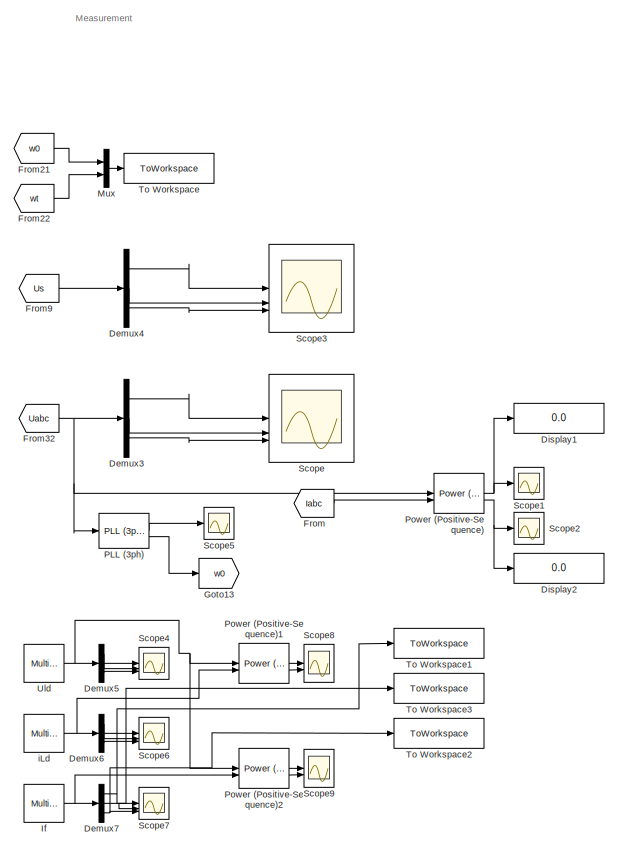
[diagram: root canvas - part 1/4, right side, full height]
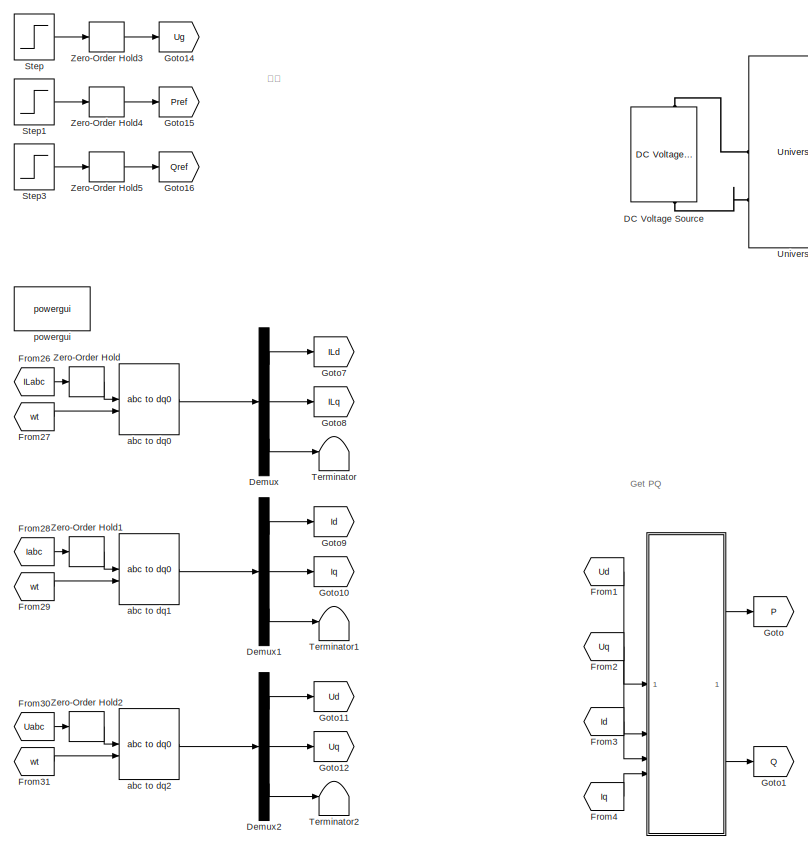
[diagram: root canvas - part 2/4, left side, full height]
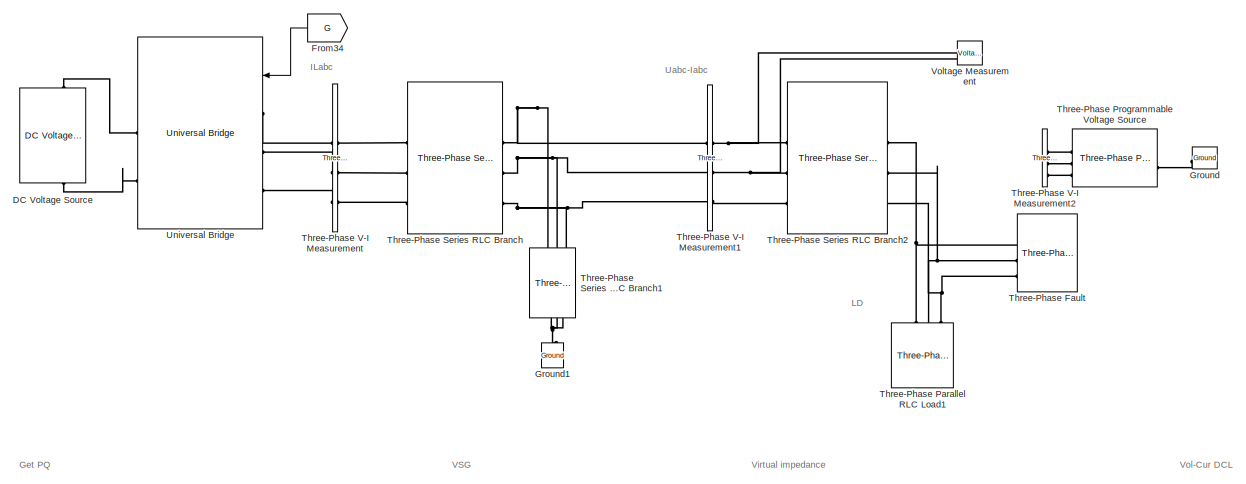
[diagram: root canvas - part 3/4, central region]
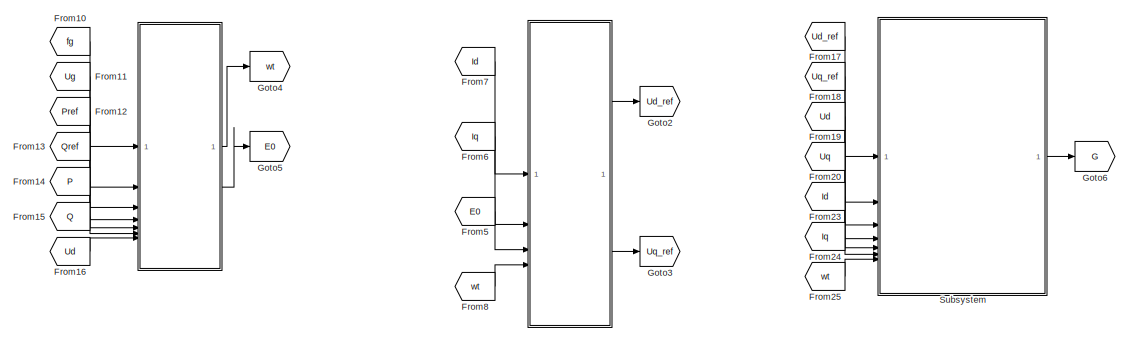
[diagram: root canvas - part 4/4, bottom center region]
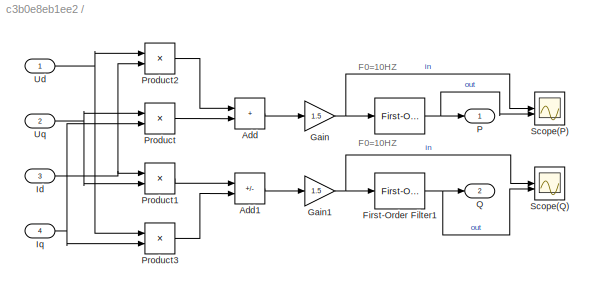
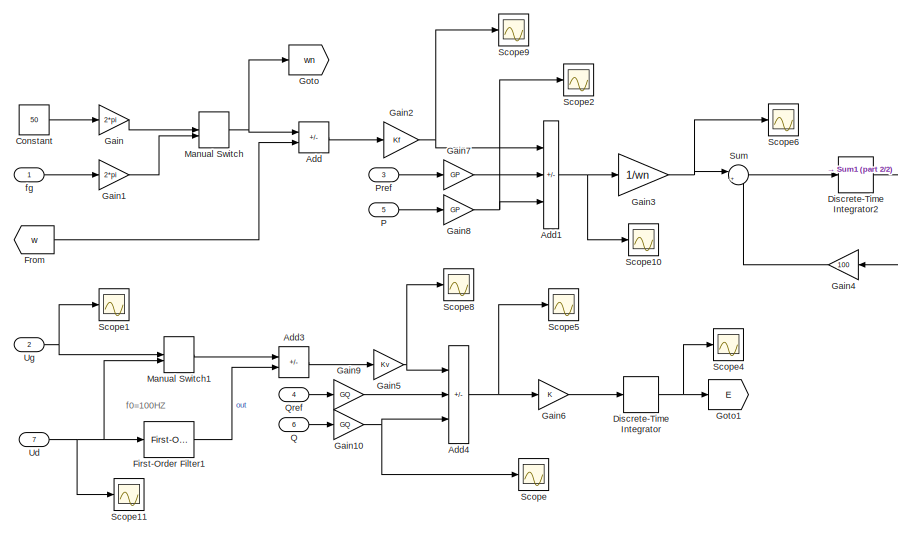
[diagram:    - part 1/2, left side, full height]
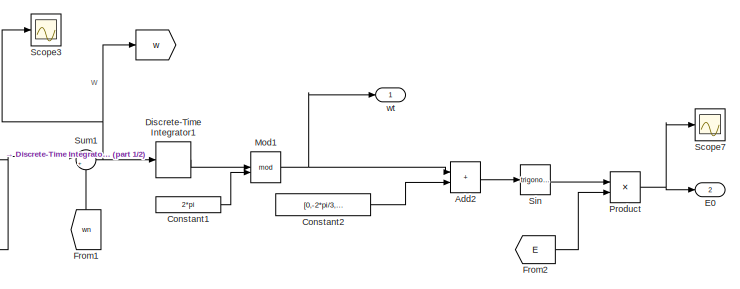
[diagram:    - part 2/2, top right region]
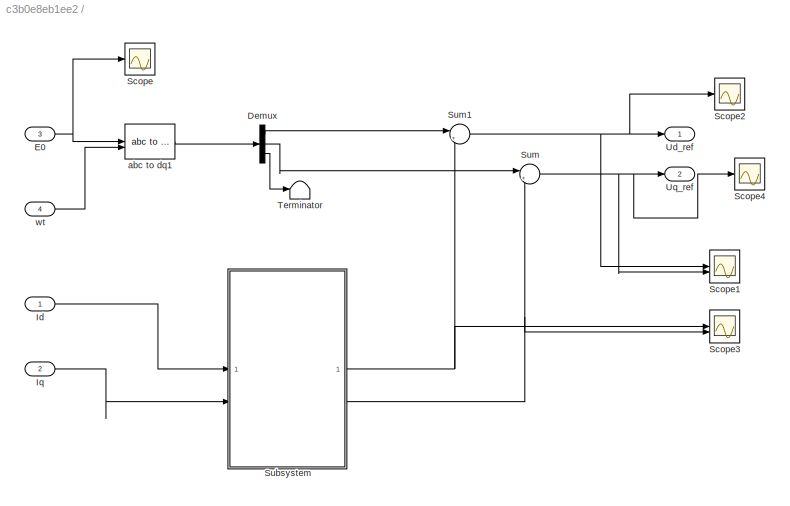
MODEL slx_c3b0e8eb1ee2
KIND model
CONFIG AbsTol = auto
CONFIG EnableMultiTasking = off
CONFIG FixedStep = 1e-6
CONFIG MaxStep = auto
CONFIG MinStep = auto
CONFIG RelTol = 1e-3
CONFIG SampleTimeConstraint = Unconstrained
CONFIG SolverName = FixedStepAuto
CONFIG StartTime = 0.0
CONFIG StopTime = 4
WORKSPACE source: mxarray member
WORKSPACE C = 0.0002
WORKSPACE D = 100
WORKSPACE GP = 1
WORKSPACE GQ = 3
WORKSPACE J = 5
WORKSPACE KQ = 0.06
WORKSPACE Kf = 120
WORKSPACE Kv = 577
WORKSPACE L = 0.002
WORKSPACE Pref = 10000
WORKSPACE Qref = 0
WORKSPACE Ts = 1e-06
WORKSPACE Ug = 563.38264084
WORKSPACE Vdc = 800
WORKSPACE fsw = 20000
WORKSPACE t0 = 0.5
WORKSPACE tco = 1.3
WORKSPACE tf = 1.2
WORKSPACE wn = 314.159265359
BLOCK [SubSystem]  
BLOCK [SubSystem]   
BLOCK [SubSystem]    
BLOCK [Demux]    /Demux
  Outputs = 3
BLOCK [Inport]    /E0
  Description = Cont
  Port = 3
BLOCK [Inport]    /Id
BLOCK [Inport]    /Iq
  Port = 2
BLOCK [Scope]    /Scope
  Floating = off
  NumInputPorts = 1
  ScopeSpecificationString = Simulink.scopes.TimeScopeBlockCfg('CurrentConfiguration', extmgr.ConfigurationSet(extmgr.Configuration('Core','General UI',true),extmgr.Configuration('Core','Source UI',true),extmgr.Configuration('Sources','WiredSimulink',true),extmgr.Configuration('Visuals','Time Domain',true,'SerializedDisplays',{struct('MinYLimReal','-749.46903','MaxYLimReal','749.46397','YLabelReal','','MinYLimMag',' 0.00000',...<+1352ch>
BLOCK [Scope]    /Scope1
  Floating = off
  NumInputPorts = 2
  ScopeSpecificationString = Simulink.scopes.TimeScopeBlockCfg('CurrentConfiguration', extmgr.ConfigurationSet(extmgr.Configuration('Core','General UI',true),extmgr.Configuration('Core','Source UI',true),extmgr.Configuration('Sources','WiredSimulink',true,'DataLoggingVariableName','ScopeData1'),extmgr.Configuration('Visuals','Time Domain',true,'SerializedDisplays',{struct('MinYLimReal','-3363.40131','MaxYLimReal','3214.4683',...<+1389ch>
BLOCK [Scope]    /Scope2
  Floating = off
  NumInputPorts = 1
  ScopeSpecificationString = Simulink.scopes.TimeScopeBlockCfg('CurrentConfiguration', extmgr.ConfigurationSet(extmgr.Configuration('Core','General UI',true),extmgr.Configuration('Core','Source UI',true),extmgr.Configuration('Sources','WiredSimulink',true,'DataLoggingVariableName','ScopeData3'),extmgr.Configuration('Visuals','Time Domain',true,'SerializedDisplays',{struct('MinYLimReal','-102.84085','MaxYLimReal','670.3572','Y...<+1373ch>
BLOCK [Scope]    /Scope3
  Floating = off
  NumInputPorts = 2
  ScopeSpecificationString = Simulink.scopes.TimeScopeBlockCfg('CurrentConfiguration', extmgr.ConfigurationSet(extmgr.Configuration('Core','General UI',true),extmgr.Configuration('Core','Source UI',true),extmgr.Configuration('Sources','WiredSimulink',true,'DataLoggingVariableName','ScopeData3'),extmgr.Configuration('Visuals','Time Domain',true),extmgr.Configuration('Tools','Plot Navigation',true),extmgr.Configuration('Tools',...<+58ch>
BLOCK [Scope]    /Scope4
  Floating = off
  NumInputPorts = 1
  ScopeSpecificationString = Simulink.scopes.TimeScopeBlockCfg('CurrentConfiguration', extmgr.ConfigurationSet(extmgr.Configuration('Core','General UI',true),extmgr.Configuration('Core','Source UI',true),extmgr.Configuration('Sources','WiredSimulink',true,'DataLoggingVariableName','ScopeData4'),extmgr.Configuration('Visuals','Time Domain',true),extmgr.Configuration('Tools','Plot Navigation',true),extmgr.Configuration('Tools',...<+40ch>
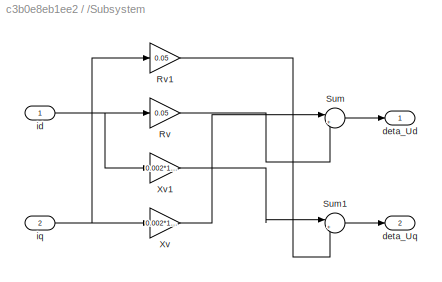
BLOCK [SubSystem]    /Subsystem
BLOCK [Gain]    /Subsystem/Rv
  Gain = 0.05
BLOCK [Gain]    /Subsystem/Rv1
  Gain = 0.05
BLOCK [Sum]    /Subsystem/Sum
  Inputs = |+-
BLOCK [Sum]    /Subsystem/Sum1
  Inputs = |++
BLOCK [Gain]    /Subsystem/Xv
  Gain = 0.002*100*pi
BLOCK [Gain]    /Subsystem/Xv1
  Gain = 0.002*100*pi
BLOCK [Outport]    /Subsystem/deta_Ud
BLOCK [Outport]    /Subsystem/deta_Uq
  Port = 2
BLOCK [Inport]    /Subsystem/id
BLOCK [Inport]    /Subsystem/iq
  Port = 2
BLOCK [Sum]    /Sum
  Inputs = |+-
BLOCK [Sum]    /Sum1
  Inputs = |++
BLOCK [Terminator]    /Terminator
BLOCK [Outport]    /Ud_ref
BLOCK [Outport]    /Uq_ref
  Port = 2
BLOCK [Reference]    /abc to dq1  REF=spsabctodq0Lib/abc to dq0
  LibrarySourceBlock = sps_lib/Control/abc to dq0
  SourceBlock = spsabctodq0Lib/abc to dq0
  SourceType = abc to dq0 Transformation
BLOCK [Inport]    /wt
  Port = 4
BLOCK [Goto]   / 
  GotoTag = w
BLOCK [Sum]   /Add
  IconShape = rectangular
  Inputs = +-
BLOCK [Sum]   /Add1
  IconShape = rectangular
  Inputs = ++-
BLOCK [Sum]   /Add2
  IconShape = rectangular
BLOCK [Sum]   /Add3
  IconShape = rectangular
  Inputs = +-
BLOCK [Sum]   /Add4
  IconShape = rectangular
  Inputs = ++-
BLOCK [Constant]   /Constant
  Value = 50
BLOCK [Constant]   /Constant1
  Value = 2*pi
BLOCK [Constant]   /Constant2
  Value = [0,-2*pi/3,2*pi/3]
BLOCK [DiscreteIntegrator]   /Discrete-Time Integrator
  ICPrevOutput = DiscIntNeverNeededParam
  ICPrevScaledInput = DiscIntNeverNeededParam
  InitialConditionSetting = Auto
  SampleTime = 1/fsw
  gainval = KQ
BLOCK [DiscreteIntegrator]   /Discrete-Time Integrator1
  ICPrevOutput = DiscIntNeverNeededParam
  ICPrevScaledInput = DiscIntNeverNeededParam
  InitialConditionSetting = Auto
  SampleTime = 1/fsw
BLOCK [DiscreteIntegrator]   /Discrete-Time Integrator2
  ICPrevOutput = DiscIntNeverNeededParam
  ICPrevScaledInput = DiscIntNeverNeededParam
  InitialConditionSetting = Auto
  SampleTime = 1/fsw
  gainval = 1/J
BLOCK [Outport]   /E0
  Port = 2
BLOCK [Reference]   /First-Order Filter1  REF=spsFirstOrderFilterLib/First-Order
Filter
  LibrarySourceBlock = sps_lib/Control/Filters/First-Order\nFilter
  SourceBlock = spsFirstOrderFilterLib/First-Order\nFilter
  SourceType = First-Order Filter
BLOCK [From]   /From
  GotoTag = w
BLOCK [From]   /From1
  GotoTag = wn
  NameLocation = right
BLOCK [From]   /From2
  GotoTag = E
BLOCK [Gain]   /Gain
  Gain = 2*pi
BLOCK [Gain]   /Gain1
  Gain = 2*pi
BLOCK [Gain]   /Gain10
  Gain = GQ
BLOCK [Gain]   /Gain2
  Gain = Kf
BLOCK [Gain]   /Gain3
  Gain = 1/wn
BLOCK [Gain]   /Gain4
  Gain = 100
BLOCK [Gain]   /Gain5
  Gain = Kv
BLOCK [Gain]   /Gain6
BLOCK [Gain]   /Gain7
  Gain = GP
BLOCK [Gain]   /Gain8
  Gain = GP
BLOCK [Gain]   /Gain9
  Gain = GQ
BLOCK [Goto]   /Goto
  GotoTag = wn
BLOCK [Goto]   /Goto1
  GotoTag = E
BLOCK [ManualSwitch]   /Manual Switch
BLOCK [ManualSwitch]   /Manual Switch1
BLOCK [Math]   /Mod1
  Operator = mod
BLOCK [Inport]   /P
  Port = 5
BLOCK [Inport]   /Pref
  Port = 3
BLOCK [Product]   /Product
BLOCK [Inport]   /Q
  Port = 6
BLOCK [Inport]   /Qref
  Port = 4
BLOCK [Scope]   /Scope
  Floating = off
  NumInputPorts = 1
  ScopeSpecificationString = Simulink.scopes.TimeScopeBlockCfg('CurrentConfiguration', extmgr.ConfigurationSet(extmgr.Configuration('Core','General UI',true),extmgr.Configuration('Core','Source UI',true),extmgr.Configuration('Sources','WiredSimulink',true),extmgr.Configuration('Visuals','Time Domain',true,'SerializedDisplays',{struct('MinYLimReal','-50.5071','MaxYLimReal','2233.1673','YLabelReal','','MinYLimMag','0.00000','Ma...<+1417ch>
BLOCK [Scope]   /Scope1
  Floating = off
  NumInputPorts = 1
  ScopeSpecificationString = Simulink.scopes.TimeScopeBlockCfg('CurrentConfiguration', extmgr.ConfigurationSet(extmgr.Configuration('Core','General UI',true),extmgr.Configuration('Core','Source UI',true),extmgr.Configuration('Sources','WiredSimulink',true,'DataLoggingVariableName','ScopeData2'),extmgr.Configuration('Visuals','Time Domain',true,'SerializedDisplays',{struct('MinYLimReal','-25.00000','MaxYLimReal','225.00000','Y...<+1481ch>
BLOCK [Scope]   /Scope10
  Floating = off
  NumInputPorts = 1
  ScopeSpecificationString = Simulink.scopes.TimeScopeBlockCfg('CurrentConfiguration', extmgr.ConfigurationSet(extmgr.Configuration('Core','General UI',true),extmgr.Configuration('Core','Source UI',true),extmgr.Configuration('Sources','WiredSimulink',true,'DataLoggingVariableName','ScopeData8'),extmgr.Configuration('Visuals','Time Domain',true,'SerializedDisplays',{struct('MinYLimReal','-46410.89145','MaxYLimReal','63521.2692...<+1428ch>
BLOCK [Scope]   /Scope11
  Floating = off
  NumInputPorts = 1
  ScopeSpecificationString = Simulink.scopes.TimeScopeBlockCfg('CurrentConfiguration', extmgr.ConfigurationSet(extmgr.Configuration('Core','General UI',true),extmgr.Configuration('Core','Source UI',true),extmgr.Configuration('Sources','WiredSimulink',true,'DataLoggingVariableName','ScopeData1'),extmgr.Configuration('Visuals','Time Domain',true,'SerializedDisplays',{struct('MinYLimReal','-276.57965','MaxYLimReal','756.49485','...<+1485ch>
BLOCK [Scope]   /Scope2
  Floating = off
  NumInputPorts = 1
  ScopeSpecificationString = Simulink.scopes.TimeScopeBlockCfg('CurrentConfiguration', extmgr.ConfigurationSet(extmgr.Configuration('Core','General UI',true),extmgr.Configuration('Core','Source UI',true),extmgr.Configuration('Sources','WiredSimulink',true,'DataLoggingVariableName','ScopeData2'),extmgr.Configuration('Visuals','Time Domain',true,'SerializedDisplays',{struct('MinYLimReal','-152.71549','MaxYLimReal','1374.43939',...<+1401ch>
BLOCK [Scope]   /Scope3
  Floating = off
  NumInputPorts = 1
  ScopeSpecificationString = Simulink.scopes.TimeScopeBlockCfg('CurrentConfiguration', extmgr.ConfigurationSet(extmgr.Configuration('Core','General UI',true),extmgr.Configuration('Core','Source UI',true),extmgr.Configuration('Sources','WiredSimulink',true,'DataLoggingVariableName','ScopeData3'),extmgr.Configuration('Visuals','Time Domain',true,'SerializedDisplays',{struct('MinYLimReal','313.34636','MaxYLimReal','315.19193','Y...<+1425ch>
BLOCK [Scope]   /Scope4
  Floating = off
  NumInputPorts = 1
  ScopeSpecificationString = Simulink.scopes.TimeScopeBlockCfg('CurrentConfiguration', extmgr.ConfigurationSet(extmgr.Configuration('Core','General UI',true),extmgr.Configuration('Core','Source UI',true),extmgr.Configuration('Sources','WiredSimulink',true,'DataLoggingVariableName','ScopeData4'),extmgr.Configuration('Visuals','Time Domain',true,'SerializedDisplays',{struct('MinYLimReal','-74.96486','MaxYLimReal','674.68371','Y...<+1393ch>
BLOCK [Scope]   /Scope5
  Floating = off
  NumInputPorts = 1
  ScopeSpecificationString = Simulink.scopes.TimeScopeBlockCfg('CurrentConfiguration', extmgr.ConfigurationSet(extmgr.Configuration('Core','General UI',true),extmgr.Configuration('Core','Source UI',true),extmgr.Configuration('Sources','WiredSimulink',true,'DataLoggingVariableName','ScopeData3'),extmgr.Configuration('Visuals','Time Domain',true,'SerializedDisplays',{struct('MinYLimReal','-179528.42495','MaxYLimReal','436423.60...<+1401ch>
BLOCK [Scope]   /Scope6
  Floating = off
  NumInputPorts = 1
  ScopeSpecificationString = Simulink.scopes.TimeScopeBlockCfg('CurrentConfiguration', extmgr.ConfigurationSet(extmgr.Configuration('Core','General UI',true),extmgr.Configuration('Core','Source UI',true),extmgr.Configuration('Sources','WiredSimulink',true,'DataLoggingVariableName','ScopeData4'),extmgr.Configuration('Visuals','Time Domain',true,'SerializedDisplays',{struct('MinYLimReal','-147.73046','MaxYLimReal','202.19448','...<+1378ch>
BLOCK [Scope]   /Scope7
  Floating = off
  NumInputPorts = 1
  ScopeSpecificationString = Simulink.scopes.TimeScopeBlockCfg('CurrentConfiguration', extmgr.ConfigurationSet(extmgr.Configuration('Core','General UI',true),extmgr.Configuration('Core','Source UI',true),extmgr.Configuration('Sources','WiredSimulink',true,'DataLoggingVariableName','ScopeData5'),extmgr.Configuration('Visuals','Time Domain',true,'SerializedDisplays',{struct('MinYLimReal','-301.28454','MaxYLimReal','301.37192','...<+1477ch>
BLOCK [Scope]   /Scope8
  Floating = off
  NumInputPorts = 1
  ScopeSpecificationString = Simulink.scopes.TimeScopeBlockCfg('CurrentConfiguration', extmgr.ConfigurationSet(extmgr.Configuration('Core','General UI',true),extmgr.Configuration('Core','Source UI',true),extmgr.Configuration('Sources','WiredSimulink',true,'DataLoggingVariableName','ScopeData6'),extmgr.Configuration('Visuals','Time Domain',true,'SerializedDisplays',{struct('MinYLimReal','179.61868','MaxYLimReal','2032.54349','...<+1430ch>
BLOCK [Scope]   /Scope9
  Floating = off
  NumInputPorts = 1
  ScopeSpecificationString = Simulink.scopes.TimeScopeBlockCfg('CurrentConfiguration', extmgr.ConfigurationSet(extmgr.Configuration('Core','General UI',true),extmgr.Configuration('Core','Source UI',true),extmgr.Configuration('Sources','WiredSimulink',true,'DataLoggingVariableName','ScopeData7'),extmgr.Configuration('Visuals','Time Domain',true,'SerializedDisplays',{struct('MinYLimReal','-1468.49135','MaxYLimReal','13216.42211...<+1409ch>
BLOCK [Trigonometry]   /Sin
BLOCK [Sum]   /Sum
  Inputs = |+-
BLOCK [Sum]   /Sum1
  Inputs = |++
BLOCK [Inport]   /Ud
  Port = 7
BLOCK [Inport]   /Ug
  Port = 2
BLOCK [Inport]   /fg
BLOCK [Outport]   /wt
BLOCK [Reference]  /   REF=spsFirstOrderFilterLib/First-Order
Filter
  LibrarySourceBlock = sps_lib/Control/Filters/First-Order\nFilter
  SourceBlock = spsFirstOrderFilterLib/First-Order\nFilter
  SourceType = First-Order Filter
BLOCK [Sum]  /Add
  IconShape = rectangular
BLOCK [Sum]  /Add1
  IconShape = rectangular
  Inputs = +-
BLOCK [Reference]  /First-Order Filter1  REF=spsFirstOrderFilterLib/First-Order
Filter
  LibrarySourceBlock = sps_lib/Control/Filters/First-Order\nFilter
  SourceBlock = spsFirstOrderFilterLib/First-Order\nFilter
  SourceType = First-Order Filter
BLOCK [Gain]  /Gain
  Gain = 1.5
BLOCK [Gain]  /Gain1
  Gain = 1.5
BLOCK [Inport]  /Id
  Port = 3
BLOCK [Inport]  /Iq
  Port = 4
BLOCK [Outport]  /P
BLOCK [Product]  /Product
BLOCK [Product]  /Product1
BLOCK [Product]  /Product2
BLOCK [Product]  /Product3
BLOCK [Outport]  /Q
  Port = 2
BLOCK [Scope]  /Scope(P)
  Floating = off
  NumInputPorts = 2
  ScopeSpecificationString = Simulink.scopes.TimeScopeBlockCfg('CurrentConfiguration', extmgr.ConfigurationSet(extmgr.Configuration('Core','General UI',true),extmgr.Configuration('Core','Source UI',true),extmgr.Configuration('Sources','WiredSimulink',true,'DataLoggingVariableName','ScopeData1'),extmgr.Configuration('Visuals','Time Domain',true),extmgr.Configuration('Tools','Plot Navigation',true),extmgr.Configuration('Tools',...<+58ch>
BLOCK [Scope]  /Scope(Q)
  Floating = off
  NumInputPorts = 2
  ScopeSpecificationString = Simulink.scopes.TimeScopeBlockCfg('CurrentConfiguration', extmgr.ConfigurationSet(extmgr.Configuration('Core','General UI',true),extmgr.Configuration('Core','Source UI',true),extmgr.Configuration('Sources','WiredSimulink',true),extmgr.Configuration('Visuals','Time Domain',true,'SerializedDisplays',{struct('MinYLimReal','-67310.48556','MaxYLimReal','51991.39138','YLabelReal','','MinYLimMag','   0.0...<+1391ch>
BLOCK [Inport]  /Ud
BLOCK [Inport]  /Uq
  Port = 2
BLOCK [Reference] DC Voltage Source  REF=spsDCVoltageSourceLib/DC Voltage Source
  LibrarySourceBlock = sps_lib/Sources/DC Voltage Source
  SourceBlock = spsDCVoltageSourceLib/DC Voltage Source
  SourceType = DC Voltage Source
BLOCK [Demux] Demux
  Outputs = 3
BLOCK [Demux] Demux1
  Outputs = 3
BLOCK [Demux] Demux2
  Outputs = 3
BLOCK [Demux] Demux3
  Outputs = 3
BLOCK [Demux] Demux4
  Outputs = 3
BLOCK [Demux] Demux5
  Outputs = 3
BLOCK [Demux] Demux6
  Outputs = 3
BLOCK [Demux] Demux7
  Outputs = 3
BLOCK [Display] Display1
  Decimation = 1
BLOCK [Display] Display2
  Decimation = 1
BLOCK [From] From
  GotoTag = Iabc
  TagVisibility = global
BLOCK [From] From1
  GotoTag = Ud
BLOCK [From] From10
  GotoTag = fg
BLOCK [From] From11
  GotoTag = Ug
BLOCK [From] From12
  GotoTag = Pref
BLOCK [From] From13
  GotoTag = Qref
BLOCK [From] From14
  GotoTag = P
BLOCK [From] From15
  GotoTag = Q
BLOCK [From] From16
  GotoTag = Ud
BLOCK [From] From17
  GotoTag = Ud_ref
BLOCK [From] From18
  GotoTag = Uq_ref
BLOCK [From] From19
  GotoTag = Ud
BLOCK [From] From2
  GotoTag = Uq
BLOCK [From] From20
  GotoTag = Uq
BLOCK [From] From21
  GotoTag = w0
BLOCK [From] From22
  GotoTag = wt
BLOCK [From] From23
  GotoTag = Id
BLOCK [From] From24
  GotoTag = Iq
BLOCK [From] From25
  GotoTag = wt
BLOCK [From] From26
  GotoTag = ILabc
  TagVisibility = global
BLOCK [From] From27
  GotoTag = wt
BLOCK [From] From28
  GotoTag = Iabc
  TagVisibility = global
BLOCK [From] From29
  GotoTag = wt
BLOCK [From] From3
  GotoTag = Id
BLOCK [From] From30
  GotoTag = Uabc
  TagVisibility = global
BLOCK [From] From31
  GotoTag = wt
BLOCK [From] From32
  GotoTag = Uabc
  TagVisibility = global
BLOCK [From] From34
  GotoTag = G
  NameLocation = top
BLOCK [From] From4
  GotoTag = Iq
BLOCK [From] From5
  GotoTag = E0
BLOCK [From] From6
  GotoTag = Iq
BLOCK [From] From7
  GotoTag = Id
BLOCK [From] From8
  GotoTag = wt
BLOCK [From] From9
  GotoTag = Us
  TagVisibility = global
BLOCK [Goto] Goto
  GotoTag = P
BLOCK [Goto] Goto1
  GotoTag = Q
BLOCK [Goto] Goto10
  GotoTag = Iq
BLOCK [Goto] Goto11
  GotoTag = Ud
BLOCK [Goto] Goto12
  GotoTag = Uq
BLOCK [Goto] Goto13
  GotoTag = w0
BLOCK [Goto] Goto14
  GotoTag = Ug
BLOCK [Goto] Goto15
  GotoTag = Pref
BLOCK [Goto] Goto16
  GotoTag = Qref
BLOCK [Goto] Goto2
  GotoTag = Ud_ref
BLOCK [Goto] Goto3
  GotoTag = Uq_ref
BLOCK [Goto] Goto4
  GotoTag = wt
BLOCK [Goto] Goto5
  GotoTag = E0
BLOCK [Goto] Goto6
  GotoTag = G
BLOCK [Goto] Goto7
  GotoTag = ILd
BLOCK [Goto] Goto8
  GotoTag = ILq
BLOCK [Goto] Goto9
  GotoTag = Id
BLOCK [Reference] Ground  REF=spsGroundLib/Ground
  LibrarySourceBlock = sps_lib/Utilities/Ground
  NameLocation = top
  SourceBlock = spsGroundLib/Ground
  SourceType = Ground
BLOCK [Reference] Ground1  REF=spsGroundLib/Ground
  LibrarySourceBlock = sps_lib/Utilities/Ground
  NameLocation = right
  SourceBlock = spsGroundLib/Ground
  SourceType = Ground
BLOCK [Reference] If  REF=spsMultimeterLib/Multimeter
  LibrarySourceBlock = sps_lib/Sensors and Measurements/Multimeter
  SourceBlock = spsMultimeterLib/Multimeter
  SourceType = Multimeter
BLOCK [Mux] Mux
  DisplayOption = bar
  Inputs = 2
BLOCK [Reference] PLL (3ph)  REF=spsPLL3phLib/PLL
(3ph)
  LibrarySourceBlock = sps_lib/Control/PLL\n(3ph)
  SourceBlock = spsPLL3phLib/PLL\n(3ph)
  SourceType = PLL (3ph)
BLOCK [Reference] Power (Positive-Sequence)  REF=spsPowerPositiveSequenceLib/Power
(Positive-Sequence)
  LibrarySourceBlock = sps_lib/Sensors and Measurements/Power\n(Positive-Sequence)
  SourceBlock = spsPowerPositiveSequenceLib/Power\n(Positive-Sequence)
  SourceType = Power (Positive-Sequence)
BLOCK [Reference] Power (Positive-Sequence)1  REF=spsPowerPositiveSequenceLib/Power
(Positive-Sequence)
  LibrarySourceBlock = sps_lib/Sensors and Measurements/Power\n(Positive-Sequence)
  SourceBlock = spsPowerPositiveSequenceLib/Power\n(Positive-Sequence)
  SourceType = Power (Positive-Sequence)
BLOCK [Reference] Power (Positive-Sequence)2  REF=spsPowerPositiveSequenceLib/Power
(Positive-Sequence)
  LibrarySourceBlock = sps_lib/Sensors and Measurements/Power\n(Positive-Sequence)
  SourceBlock = spsPowerPositiveSequenceLib/Power\n(Positive-Sequence)
  SourceType = Power (Positive-Sequence)
BLOCK [Scope] Scope
  Floating = off
  NumInputPorts = 3
  ScopeSpecificationString = Simulink.scopes.TimeScopeBlockCfg('CurrentConfiguration', extmgr.ConfigurationSet(extmgr.Configuration('Core','General UI',true),extmgr.Configuration('Core','Source UI',true),extmgr.Configuration('Sources','WiredSimulink',true,'DataLoggingVariableName','dd','DataLogging',true,'DataLoggingSaveFormat','StructureWithTime'),extmgr.Configuration('Visuals','Time Domain',true,'SerializedDisplays',{struct...<+1533ch>
BLOCK [Scope] Scope1
  Floating = off
  NumInputPorts = 1
  ScopeSpecificationString = Simulink.scopes.TimeScopeBlockCfg('CurrentConfiguration', extmgr.ConfigurationSet(extmgr.Configuration('Core','General UI',true),extmgr.Configuration('Core','Source UI',true),extmgr.Configuration('Sources','WiredSimulink',true,'DataLoggingVariableName','ScopeData1'),extmgr.Configuration('Visuals','Time Domain',true,'SerializedDisplays',{struct('MinYLimReal','-8256.72976','MaxYLimReal','74310.56782...<+1441ch>
BLOCK [Scope] Scope2
  Floating = off
  NumInputPorts = 1
  ScopeSpecificationString = Simulink.scopes.TimeScopeBlockCfg('CurrentConfiguration', extmgr.ConfigurationSet(extmgr.Configuration('Core','General UI',true),extmgr.Configuration('Core','Source UI',true),extmgr.Configuration('Sources','WiredSimulink',true,'DataLoggingVariableName','ScopeData2'),extmgr.Configuration('Visuals','Time Domain',true,'SerializedDisplays',{struct('MinYLimReal','-61964.12254','MaxYLimReal','9096.99453...<+1489ch>
BLOCK [Scope] Scope3
  Floating = off
  NumInputPorts = 3
  ScopeSpecificationString = Simulink.scopes.TimeScopeBlockCfg('CurrentConfiguration', extmgr.ConfigurationSet(extmgr.Configuration('Core','General UI',true),extmgr.Configuration('Core','Source UI',true),extmgr.Configuration('Sources','WiredSimulink',true,'DataLoggingVariableName','ScopeData5'),extmgr.Configuration('Visuals','Time Domain',true,'SerializedDisplays',{struct('MinYLimReal','-704.2283','MaxYLimReal','704.2283','YL...<+1496ch>
BLOCK [Scope] Scope4
  Floating = off
  NumInputPorts = 3
  ScopeSpecificationString = Simulink.scopes.TimeScopeBlockCfg('CurrentConfiguration', extmgr.ConfigurationSet(extmgr.Configuration('Core','General UI',true),extmgr.Configuration('Core','Source UI',true),extmgr.Configuration('Sources','WiredSimulink',true,'DataLoggingVariableName','ScopeData2'),extmgr.Configuration('Visuals','Time Domain',true,'SerializedDisplays',{struct('MinYLimReal','-1503.05288','MaxYLimReal','1056.56765'...<+2674ch>
BLOCK [Scope] Scope5
  Floating = off
  NumInputPorts = 1
  ScopeSpecificationString = Simulink.scopes.TimeScopeBlockCfg('CurrentConfiguration', extmgr.ConfigurationSet(extmgr.Configuration('Core','General UI',true),extmgr.Configuration('Core','Source UI',true),extmgr.Configuration('Sources','WiredSimulink',true,'DataLoggingVariableName','ScopeData1'),extmgr.Configuration('Visuals','Time Domain',true,'SerializedDisplays',{struct('MinYLimReal','49.88361','MaxYLimReal','50.11052','YLa...<+1448ch>
BLOCK [Scope] Scope6
  Floating = off
  NumInputPorts = 3
  ScopeSpecificationString = Simulink.scopes.TimeScopeBlockCfg('CurrentConfiguration', extmgr.ConfigurationSet(extmgr.Configuration('Core','General UI',true),extmgr.Configuration('Core','Source UI',true),extmgr.Configuration('Sources','WiredSimulink',true,'DataLoggingVariableName','ScopeData3'),extmgr.Configuration('Visuals','Time Domain',true,'SerializedDisplays',{struct('MinYLimReal','-31.57011','MaxYLimReal','22.19214','YL...<+2658ch>
BLOCK [Scope] Scope7
  Floating = off
  NumInputPorts = 3
  ScopeSpecificationString = Simulink.scopes.TimeScopeBlockCfg('CurrentConfiguration', extmgr.ConfigurationSet(extmgr.Configuration('Core','General UI',true),extmgr.Configuration('Core','Source UI',true),extmgr.Configuration('Sources','WiredSimulink',true,'DataLoggingVariableName','ScopeData4'),extmgr.Configuration('Visuals','Time Domain',true,'SerializedDisplays',{struct('MinYLimReal','-308.26495','MaxYLimReal','311.73334','...<+2658ch>
BLOCK [Scope] Scope8
  Floating = off
  NumInputPorts = 2
  ScopeSpecificationString = Simulink.scopes.TimeScopeBlockCfg('CurrentConfiguration', extmgr.ConfigurationSet(extmgr.Configuration('Core','General UI',true),extmgr.Configuration('Core','Source UI',true),extmgr.Configuration('Sources','WiredSimulink',true,'DataLoggingVariableName','ScopeData5'),extmgr.Configuration('Visuals','Time Domain',true,'SerializedDisplays',{struct('MinYLimReal','-1260.30692','MaxYLimReal','11342.76226...<+2071ch>
BLOCK [Scope] Scope9
  Floating = off
  NumInputPorts = 2
  ScopeSpecificationString = Simulink.scopes.TimeScopeBlockCfg('CurrentConfiguration', extmgr.ConfigurationSet(extmgr.Configuration('Core','General UI',true),extmgr.Configuration('Core','Source UI',true),extmgr.Configuration('Sources','WiredSimulink',true,'DataLoggingVariableName','ScopeData6'),extmgr.Configuration('Visuals','Time Domain',true,'SerializedDisplays',{struct('MinYLimReal','-10','MaxYLimReal','10','YLabelReal',''...<+2092ch>
BLOCK [Step] Step
  After = Ug
  Before = 1
  SampleTime = 0
  Time = 0.5
BLOCK [Step] Step1
  After = Pref
  SampleTime = 0
  Time = t0
BLOCK [Step] Step3
  After = Qref
  SampleTime = 0
  Time = t0
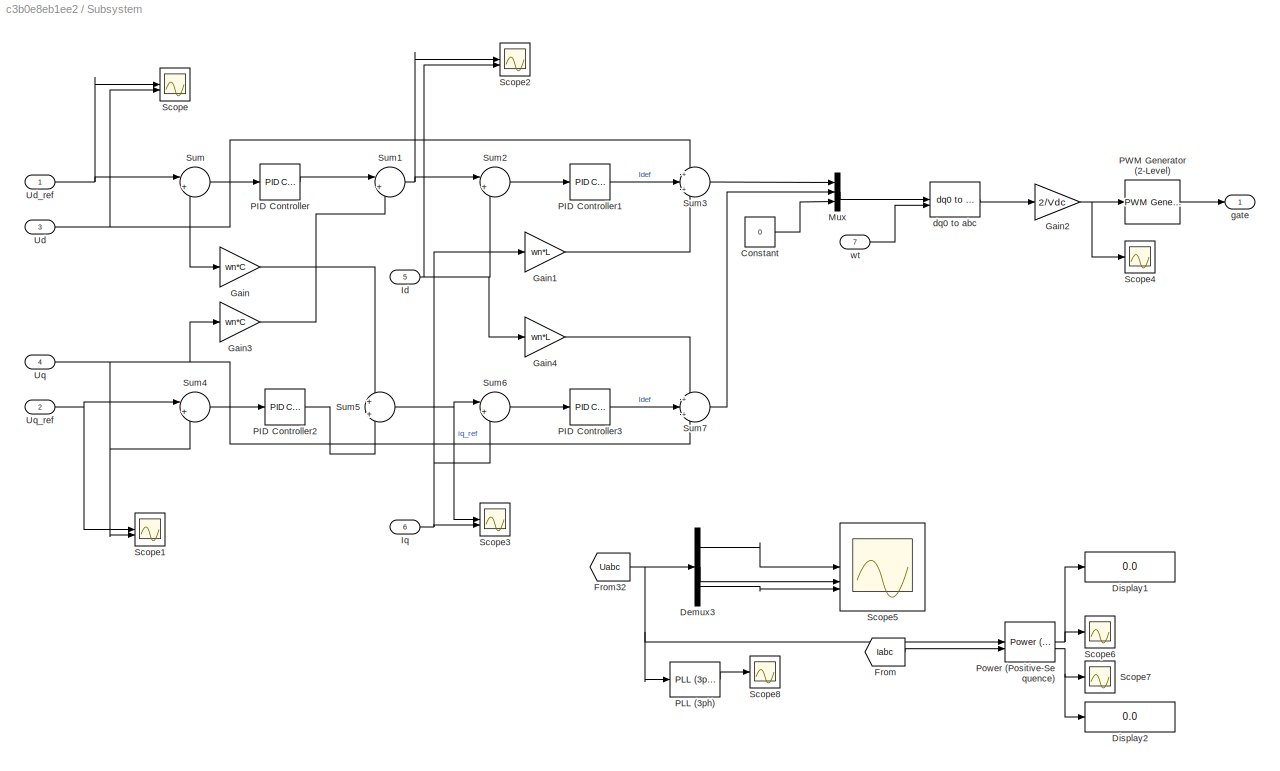
BLOCK [SubSystem] Subsystem
BLOCK [Constant] Subsystem/Constant
  Value = 0
BLOCK [Demux] Subsystem/Demux3
  Outputs = 3
BLOCK [Display] Subsystem/Display1
  Decimation = 1
BLOCK [Display] Subsystem/Display2
  Decimation = 1
BLOCK [From] Subsystem/From
  GotoTag = Iabc
  TagVisibility = global
BLOCK [From] Subsystem/From32
  GotoTag = Uabc
  TagVisibility = global
BLOCK [Gain] Subsystem/Gain
  Gain = wn*C
BLOCK [Gain] Subsystem/Gain1
  Gain = wn*L
BLOCK [Gain] Subsystem/Gain2
  Gain = 2/Vdc
BLOCK [Gain] Subsystem/Gain3
  Gain = wn*C
  NameLocation = top
BLOCK [Gain] Subsystem/Gain4
  Gain = wn*L
  NameLocation = top
BLOCK [Inport] Subsystem/Id
  Port = 5
BLOCK [Inport] Subsystem/Iq
  Port = 6
BLOCK [Mux] Subsystem/Mux
  DisplayOption = bar
  Inputs = 3
BLOCK [Reference] Subsystem/PID Controller  REF=slpidlib/PID Controller
  LibrarySourceBlock = simulink/Continuous/PID Controller
  SourceBlock = slpidlib/PID Controller
  SourceType = PID 1dof
BLOCK [Reference] Subsystem/PID Controller1  REF=slpidlib/PID Controller
  LibrarySourceBlock = simulink/Continuous/PID Controller
  SourceBlock = slpidlib/PID Controller
  SourceType = PID 1dof
BLOCK [Reference] Subsystem/PID Controller2  REF=slpidlib/PID Controller
  LibrarySourceBlock = simulink/Continuous/PID Controller
  NameLocation = top
  SourceBlock = slpidlib/PID Controller
  SourceType = PID 1dof
BLOCK [Reference] Subsystem/PID Controller3  REF=slpidlib/PID Controller
  LibrarySourceBlock = simulink/Continuous/PID Controller
  NameLocation = top
  SourceBlock = slpidlib/PID Controller
  SourceType = PID 1dof
BLOCK [Reference] Subsystem/PLL (3ph)  REF=spsPLL3phLib/PLL
(3ph)
  LibrarySourceBlock = sps_lib/Control/PLL\n(3ph)
  SourceBlock = spsPLL3phLib/PLL\n(3ph)
  SourceType = PLL (3ph)
BLOCK [Reference] Subsystem/PWM Generator (2-Level)  REF=spsPWMGenerator2LevelLib/PWM Generator
(2-Level)
  LibrarySourceBlock = sps_lib/Power Electronics/Power Electronics Control/PWM Generator\n(2-Level)
  SourceBlock = spsPWMGenerator2LevelLib/PWM Generator\n(2-Level)
  SourceType = PWM Generator (2-Level)
BLOCK [Reference] Subsystem/Power (Positive-Sequence)  REF=spsPowerPositiveSequenceLib/Power
(Positive-Sequence)
  LibrarySourceBlock = sps_lib/Sensors and Measurements/Power\n(Positive-Sequence)
  SourceBlock = spsPowerPositiveSequenceLib/Power\n(Positive-Sequence)
  SourceType = Power (Positive-Sequence)
BLOCK [Scope] Subsystem/Scope
  Floating = off
  NumInputPorts = 2
  ScopeSpecificationString = Simulink.scopes.TimeScopeBlockCfg('CurrentConfiguration', extmgr.ConfigurationSet(extmgr.Configuration('Core','General UI',true),extmgr.Configuration('Core','Source UI',true),extmgr.Configuration('Sources','WiredSimulink',true),extmgr.Configuration('Visuals','Time Domain',true,'SerializedDisplays',{struct('MinYLimReal','-72.43624','MaxYLimReal','643.4769','YLabelReal','','MinYLimMag','0.00000','Ma...<+1436ch>
BLOCK [Scope] Subsystem/Scope1
  Floating = off
  NumInputPorts = 2
  ScopeSpecificationString = Simulink.scopes.TimeScopeBlockCfg('CurrentConfiguration', extmgr.ConfigurationSet(extmgr.Configuration('Core','General UI',true),extmgr.Configuration('Core','Source UI',true),extmgr.Configuration('Sources','WiredSimulink',true,'DataLoggingVariableName','ScopeData1'),extmgr.Configuration('Visuals','Time Domain',true,'SerializedDisplays',{struct('MinYLimReal','-1.00000','MaxYLimReal','1.00000','YLab...<+1370ch>
BLOCK [Scope] Subsystem/Scope2
  Floating = off
  NumInputPorts = 2
  ScopeSpecificationString = Simulink.scopes.TimeScopeBlockCfg('CurrentConfiguration', extmgr.ConfigurationSet(extmgr.Configuration('Core','General UI',true),extmgr.Configuration('Core','Source UI',true),extmgr.Configuration('Sources','WiredSimulink',true,'DataLoggingVariableName','ScopeData2'),extmgr.Configuration('Visuals','Time Domain',true,'SerializedDisplays',{struct('MinYLimReal','-391.61925','MaxYLimReal','135.0486','Y...<+1380ch>
BLOCK [Scope] Subsystem/Scope3
  Floating = off
  NumInputPorts = 2
  ScopeSpecificationString = Simulink.scopes.TimeScopeBlockCfg('CurrentConfiguration', extmgr.ConfigurationSet(extmgr.Configuration('Core','General UI',true),extmgr.Configuration('Core','Source UI',true),extmgr.Configuration('Sources','WiredSimulink',true,'DataLoggingVariableName','ScopeData3'),extmgr.Configuration('Visuals','Time Domain',true,'SerializedDisplays',{struct('MinYLimReal','-7426.84943','MaxYLimReal','1823.77706'...<+1392ch>
BLOCK [Scope] Subsystem/Scope4
  Floating = off
  NumInputPorts = 1
  ScopeSpecificationString = Simulink.scopes.TimeScopeBlockCfg('CurrentConfiguration', extmgr.ConfigurationSet(extmgr.Configuration('Core','General UI',true),extmgr.Configuration('Core','Source UI',true),extmgr.Configuration('Sources','WiredSimulink',true,'DataLoggingVariableName','ScopeData1'),extmgr.Configuration('Visuals','Time Domain',true,'SerializedDisplays',{struct('MinYLimReal','-65.32676','MaxYLimReal','65.31629','YL...<+1392ch>
BLOCK [Scope] Subsystem/Scope5
  Floating = off
  NumInputPorts = 3
  ScopeSpecificationString = Simulink.scopes.TimeScopeBlockCfg('CurrentConfiguration', extmgr.ConfigurationSet(extmgr.Configuration('Core','General UI',true),extmgr.Configuration('Core','Source UI',true),extmgr.Configuration('Sources','WiredSimulink',true,'DataLoggingVariableName','ScopeData1'),extmgr.Configuration('Visuals','Time Domain',true,'SerializedDisplays',{struct('MinYLimReal','-835.59554','MaxYLimReal','838.09464','...<+1478ch>
BLOCK [Scope] Subsystem/Scope6
  Floating = off
  NumInputPorts = 1
  ScopeSpecificationString = Simulink.scopes.TimeScopeBlockCfg('CurrentConfiguration', extmgr.ConfigurationSet(extmgr.Configuration('Core','General UI',true),extmgr.Configuration('Core','Source UI',true),extmgr.Configuration('Sources','WiredSimulink',true,'DataLoggingVariableName','ScopeData2'),extmgr.Configuration('Visuals','Time Domain',true,'SerializedDisplays',{struct('MinYLimReal','-7822.69493','MaxYLimReal','70404.25439...<+1445ch>
BLOCK [Scope] Subsystem/Scope7
  Floating = off
  NumInputPorts = 1
  ScopeSpecificationString = Simulink.scopes.TimeScopeBlockCfg('CurrentConfiguration', extmgr.ConfigurationSet(extmgr.Configuration('Core','General UI',true),extmgr.Configuration('Core','Source UI',true),extmgr.Configuration('Sources','WiredSimulink',true,'DataLoggingVariableName','ScopeData3'),extmgr.Configuration('Visuals','Time Domain',true,'SerializedDisplays',{struct('MinYLimReal','-64132.09698','MaxYLimReal','13915.3471...<+1416ch>
BLOCK [Scope] Subsystem/Scope8
  Floating = off
  NumInputPorts = 1
  ScopeSpecificationString = Simulink.scopes.TimeScopeBlockCfg('CurrentConfiguration', extmgr.ConfigurationSet(extmgr.Configuration('Core','General UI',true),extmgr.Configuration('Core','Source UI',true),extmgr.Configuration('Sources','WiredSimulink',true,'DataLoggingVariableName','ScopeData4'),extmgr.Configuration('Visuals','Time Domain',true,'SerializedDisplays',{struct('MinYLimReal','49.62482','MaxYLimReal','50.07088','YLa...<+1480ch>
BLOCK [Sum] Subsystem/Sum
  Inputs = |+-
BLOCK [Sum] Subsystem/Sum1
  Inputs = |+-
BLOCK [Sum] Subsystem/Sum2
  Inputs = |+-
BLOCK [Sum] Subsystem/Sum3
  Inputs = +|+|-
BLOCK [Sum] Subsystem/Sum4
  Inputs = |+-
  NameLocation = top
BLOCK [Sum] Subsystem/Sum5
  Inputs = +|+
  NameLocation = top
BLOCK [Sum] Subsystem/Sum6
  Inputs = |+-
  NameLocation = top
BLOCK [Sum] Subsystem/Sum7
  Inputs = +|+|+
  NameLocation = top
BLOCK [Inport] Subsystem/Ud
  Port = 3
BLOCK [Inport] Subsystem/Ud_ref
BLOCK [Inport] Subsystem/Uq
  NameLocation = top
  Port = 4
BLOCK [Inport] Subsystem/Uq_ref
  NameLocation = top
  Port = 2
BLOCK [Reference] Subsystem/dq0 to abc  REF=spsdq0toabcLib/dq0 to abc
  LibrarySourceBlock = sps_lib/Control/dq0 to abc
  SourceBlock = spsdq0toabcLib/dq0 to abc
  SourceType = dq0 to abc Transformation
BLOCK [Outport] Subsystem/gate
BLOCK [Inport] Subsystem/wt
  Port = 7
BLOCK [Terminator] Terminator
BLOCK [Terminator] Terminator1
BLOCK [Terminator] Terminator2
BLOCK [Reference] Three-Phase Fault  REF=spsThreePhaseFaultLib/Three-Phase Fault
  LibrarySourceBlock = sps_lib/Power Grid Elements/Three-Phase Fault
  SourceBlock = spsThreePhaseFaultLib/Three-Phase Fault
  SourceType = Three-Phase Fault
BLOCK [Reference] Three-Phase Parallel RLC Load1  REF=spsThreePhaseParallelRLCLoadLib/Three-Phase
Parallel RLC Load
  AttributesFormatString = \n
  LibrarySourceBlock = sps_lib/Passives/Three-Phase\nParallel RLC Load
  SourceBlock = spsThreePhaseParallelRLCLoadLib/Three-Phase\nParallel RLC Load
  SourceType = Three-Phase Parallel RLC Load
BLOCK [Reference] Three-Phase Programmable Voltage Source  REF=spsThreePhaseProgrammableVoltageSourceLib/Three-Phase
Programmable
Voltage Source
  LibrarySourceBlock = sps_lib/Sources/Three-Phase\nProgrammable\nVoltage Source
  NameLocation = top
  SourceBlock = spsThreePhaseProgrammableVoltageSourceLib/Three-Phase\nProgrammable\nVoltage Source
  SourceType = Three-Phase Programmable Voltage Source
BLOCK [Reference] Three-Phase Series RLC Branch  REF=spsThreePhaseSeriesRLCBranchLib/Three-Phase
Series RLC Branch
  AttributesFormatString = \n
  LibrarySourceBlock = sps_lib/Passives/Three-Phase\nSeries RLC Branch
  SourceBlock = spsThreePhaseSeriesRLCBranchLib/Three-Phase\nSeries RLC Branch
  SourceType = Three-Phase Series RLC Branch
BLOCK [Reference] Three-Phase Series RLC Branch1  REF=spsThreePhaseSeriesRLCBranchLib/Three-Phase
Series RLC Branch
  AttributesFormatString = \n
  LibrarySourceBlock = sps_lib/Passives/Three-Phase\nSeries RLC Branch
  NameLocation = left
  SourceBlock = spsThreePhaseSeriesRLCBranchLib/Three-Phase\nSeries RLC Branch
  SourceType = Three-Phase Series RLC Branch
BLOCK [Reference] Three-Phase Series RLC Branch2  REF=spsThreePhaseSeriesRLCBranchLib/Three-Phase
Series RLC Branch
  AttributesFormatString = \n
  LibrarySourceBlock = sps_lib/Passives/Three-Phase\nSeries RLC Branch
  SourceBlock = spsThreePhaseSeriesRLCBranchLib/Three-Phase\nSeries RLC Branch
  SourceType = Three-Phase Series RLC Branch
BLOCK [Reference] Three-Phase V-I Measurement  REF=spsThreePhaseVIMeasurementLib/Three-Phase
V-I Measurement
  LibrarySourceBlock = sps_lib/Sensors and Measurements/Three-Phase\nV-I Measurement
  SourceBlock = spsThreePhaseVIMeasurementLib/Three-Phase\nV-I Measurement
  SourceType = Three-Phase VI Measurement
BLOCK [Reference] Three-Phase V-I Measurement1  REF=spsThreePhaseVIMeasurementLib/Three-Phase
V-I Measurement
  LibrarySourceBlock = sps_lib/Sensors and Measurements/Three-Phase\nV-I Measurement
  SourceBlock = spsThreePhaseVIMeasurementLib/Three-Phase\nV-I Measurement
  SourceType = Three-Phase VI Measurement
BLOCK [Reference] Three-Phase V-I Measurement2  REF=spsThreePhaseVIMeasurementLib/Three-Phase
V-I Measurement
  LibrarySourceBlock = sps_lib/Sensors and Measurements/Three-Phase\nV-I Measurement
  SourceBlock = spsThreePhaseVIMeasurementLib/Three-Phase\nV-I Measurement
  SourceType = Three-Phase VI Measurement
BLOCK [ToWorkspace] To Workspace
  FixptAsFi = on
  MaxDataPoints = inf
  SampleTime = -1
  SaveFormat = Timeseries
  VariableName = W1_5
BLOCK [ToWorkspace] To Workspace1
  FixptAsFi = on
  MaxDataPoints = inf
  SampleTime = -1
  SaveFormat = Timeseries
  VariableName = IA
BLOCK [ToWorkspace] To Workspace2
  FixptAsFi = on
  MaxDataPoints = inf
  SampleTime = -1
  SaveFormat = Timeseries
  VariableName = IC
BLOCK [ToWorkspace] To Workspace3
  FixptAsFi = on
  MaxDataPoints = inf
  SampleTime = -1
  SaveFormat = Timeseries
  VariableName = IB
BLOCK [Reference] Uld  REF=spsMultimeterLib/Multimeter
  LibrarySourceBlock = sps_lib/Sensors and Measurements/Multimeter
  SourceBlock = spsMultimeterLib/Multimeter
  SourceType = Multimeter
BLOCK [Reference] Universal Bridge  REF=spsUniversalBridgeLib/Universal Bridge
  LibrarySourceBlock = sps_lib/Power Electronics/Universal Bridge
  SourceBlock = spsUniversalBridgeLib/Universal Bridge
  SourceType = Universal Bridge
BLOCK [Reference] Voltage Measurement  REF=spsVoltageMeasurementLib/Voltage Measurement
  LibrarySourceBlock = sps_lib/Sensors and Measurements/Voltage Measurement
  SourceBlock = spsVoltageMeasurementLib/Voltage Measurement
  SourceType = Voltage Measurement
  UserDataPersistent = on
BLOCK [ZeroOrderHold] Zero-Order Hold
  SampleTime = 1/fsw
BLOCK [ZeroOrderHold] Zero-Order Hold1
  SampleTime = 1/fsw
BLOCK [ZeroOrderHold] Zero-Order Hold2
  SampleTime = 1/fsw
BLOCK [ZeroOrderHold] Zero-Order Hold3
  SampleTime = 1/fsw
BLOCK [ZeroOrderHold] Zero-Order Hold4
  SampleTime = 1/fsw
BLOCK [ZeroOrderHold] Zero-Order Hold5
  SampleTime = 1/fsw
BLOCK [Reference] abc to dq0  REF=spsabctodq0Lib/abc to dq0
  LibrarySourceBlock = sps_lib/Control/abc to dq0
  SourceBlock = spsabctodq0Lib/abc to dq0
  SourceType = abc to dq0 Transformation
BLOCK [Reference] abc to dq1  REF=spsabctodq0Lib/abc to dq0
  LibrarySourceBlock = sps_lib/Control/abc to dq0
  SourceBlock = spsabctodq0Lib/abc to dq0
  SourceType = abc to dq0 Transformation
BLOCK [Reference] abc to dq2  REF=spsabctodq0Lib/abc to dq0
  LibrarySourceBlock = sps_lib/Control/abc to dq0
  SourceBlock = spsabctodq0Lib/abc to dq0
  SourceType = abc to dq0 Transformation
BLOCK [Reference] iLd  REF=spsMultimeterLib/Multimeter
  LibrarySourceBlock = sps_lib/Sensors and Measurements/Multimeter
  SourceBlock = spsMultimeterLib/Multimeter
  SourceType = Multimeter
BLOCK [Reference] powergui  REF=sps_lib/powergui
  Priority = 1
  SourceBlock = sps_lib/powergui
  SourceType = PSB option menu block
ANNOTATION (root): Get PQ
ANNOTATION (root): VSG
ANNOTATION (root): Virtual impedance
ANNOTATION (root): Vol-Cur DCL
ANNOTATION (root): 给定
ANNOTATION (root): Measurement
ANNOTATION (root): ILabc
ANNOTATION (root): LD
ANNOTATION (root): Uabc-Iabc
ANNOTATION  : F0=10HZ
ANNOTATION   : f0=100HZ
ANNOTATION   : w
LINE    /Demux:1 ->    /Sum1:1
LINE    /Demux:2 ->    /Sum:1
LINE    /Demux:3 ->    /Terminator:1
NET    /E0:1 ->    /Scope:1,    /abc to dq1:1
LINE    /Id:1 ->    /Subsystem:1
LINE    /Iq:1 ->    /Subsystem:2
LINE    /Subsystem/Rv1:1 ->    /Subsystem/Sum1:2
LINE    /Subsystem/Rv:1 ->    /Subsystem/Sum:2
LINE    /Subsystem/Sum1:1 ->    /Subsystem/deta_Uq:1
LINE    /Subsystem/Sum:1 ->    /Subsystem/deta_Ud:1
LINE    /Subsystem/Xv1:1 ->    /Subsystem/Sum1:1
LINE    /Subsystem/Xv:1 ->    /Subsystem/Sum:1
NET    /Subsystem/id:1 ->    /Subsystem/Rv:1,    /Subsystem/Xv1:1
NET    /Subsystem/iq:1 ->    /Subsystem/Rv1:1,    /Subsystem/Xv:1
NET    /Subsystem:1 ->    /Scope3:1,    /Sum1:2
NET    /Subsystem:2 ->    /Scope3:2,    /Sum:2
NET    /Sum1:1 ->    /Scope1:1,    /Scope2:1,    /Ud_ref:1
NET    /Sum:1 ->    /Scope1:2,    /Scope4:1,    /Uq_ref:1
LINE    /abc to dq1:1 ->    /Demux:1
LINE    /wt:1 ->    /abc to dq1:2
LINE    :1 -> Goto2:1
LINE    :2 -> Goto3:1
NET   /Add1:1 ->   /Gain3:1,   /Scope10:1
LINE   /Add2:1 ->   /Sin:1
LINE   /Add3:1 ->   /Gain5:1
NET   /Add4:1 ->   /Gain6:1,   /Scope5:1
LINE   /Add:1 ->   /Gain2:1
LINE   /Constant1:1 ->   /Mod1:2
LINE   /Constant2:1 ->   /Add2:2
LINE   /Constant:1 ->   /Gain:1
LINE   /Discrete-Time Integrator1:1 ->   /Mod1:1
NET   /Discrete-Time Integrator2:1 ->   /Gain4:1,   /Sum1:1
NET   /Discrete-Time Integrator:1 ->   /Goto1:1,   /Scope4:1
LINE   /First-Order Filter1:1 ->   /Add3:2
LINE   /From1:1 ->   /Sum1:2
LINE   /From2:1 ->   /Product:2
LINE   /From:1 ->   /Add:2
NET   /Gain10:1 ->   /Add4:3,   /Scope:1
LINE   /Gain1:1 ->   /Manual Switch:2
NET   /Gain2:1 ->   /Add1:1,   /Scope9:1
NET   /Gain3:1 ->   /Scope6:1,   /Sum:1
LINE   /Gain4:1 ->   /Sum:2
NET   /Gain5:1 ->   /Add4:1,   /Scope8:1
LINE   /Gain6:1 ->   /Discrete-Time Integrator:1
LINE   /Gain7:1 ->   /Add1:2
NET   /Gain8:1 ->   /Add1:3,   /Scope2:1
LINE   /Gain9:1 ->   /Add4:2
LINE   /Gain:1 ->   /Manual Switch:1
LINE   /Manual Switch1:1 ->   /Add3:1
NET   /Manual Switch:1 ->   /Add:1,   /Goto:1
NET   /Mod1:1 ->   /Add2:1,   /wt:1
LINE   /P:1 ->   /Gain8:1
LINE   /Pref:1 ->   /Gain7:1
NET   /Product:1 ->   /E0:1,   /Scope7:1
LINE   /Q:1 ->   /Gain10:1
LINE   /Qref:1 ->   /Gain9:1
LINE   /Sin:1 ->   /Product:1
NET   /Sum1:1 ->   / :1,   /Discrete-Time Integrator1:1,   /Scope3:1
LINE   /Sum:1 ->   /Discrete-Time Integrator2:1
NET   /Ud:1 ->   /First-Order Filter1:1,   /Manual Switch1:2,   /Scope11:1
NET   /Ug:1 ->   /Manual Switch1:1,   /Scope1:1
LINE   /fg:1 ->   /Gain1:1
LINE   :1 -> Goto4:1
LINE   :2 -> Goto5:1
NET  / :1 ->  /P:1,  /Scope(P):2
LINE  /Add1:1 ->  /Gain1:1
LINE  /Add:1 ->  /Gain:1
NET  /First-Order Filter1:1 ->  /Q:1,  /Scope(Q):2
NET  /Gain1:1 ->  /First-Order Filter1:1,  /Scope(Q):1
NET  /Gain:1 ->  / :1,  /Scope(P):1
NET  /Id:1 ->  /Product1:1,  /Product2:2
NET  /Iq:1 ->  /Product3:2,  /Product:2
LINE  /Product1:1 ->  /Add1:1
LINE  /Product2:1 ->  /Add:1
LINE  /Product3:1 ->  /Add1:2
LINE  /Product:1 ->  /Add:2
NET  /Ud:1 ->  /Product2:1,  /Product3:1
NET  /Uq:1 ->  /Product1:2,  /Product:1
LINE  :1 -> Goto:1
LINE  :2 -> Goto1:1
LINE Demux1:1 -> Goto9:1
LINE Demux1:2 -> Goto10:1
LINE Demux1:3 -> Terminator1:1
LINE Demux2:1 -> Goto11:1
LINE Demux2:2 -> Goto12:1
LINE Demux2:3 -> Terminator2:1
LINE Demux3:1 -> Scope:1
LINE Demux3:2 -> Scope:2
LINE Demux3:3 -> Scope:3
LINE Demux4:1 -> Scope3:1
LINE Demux4:2 -> Scope3:2
LINE Demux4:3 -> Scope3:3
LINE Demux5:1 -> Scope4:1
LINE Demux5:2 -> Scope4:2
LINE Demux5:3 -> Scope4:3
LINE Demux6:1 -> Scope6:1
LINE Demux6:2 -> Scope6:2
LINE Demux6:3 -> Scope6:3
NET Demux7:1 -> Scope7:1, To Workspace1:1
NET Demux7:2 -> Scope7:2, To Workspace3:1
NET Demux7:3 -> Scope7:3, To Workspace2:1
LINE Demux:1 -> Goto7:1
LINE Demux:2 -> Goto8:1
LINE Demux:3 -> Terminator:1
LINE From10:1 ->   :1
LINE From11:1 ->   :2
LINE From12:1 ->   :3
LINE From13:1 ->   :4
LINE From14:1 ->   :5
LINE From15:1 ->   :6
LINE From16:1 ->   :7
LINE From17:1 -> Subsystem:1
LINE From18:1 -> Subsystem:2
LINE From19:1 -> Subsystem:3
LINE From1:1 ->  :1
LINE From20:1 -> Subsystem:4
LINE From21:1 -> Mux:1
LINE From22:1 -> Mux:2
LINE From23:1 -> Subsystem:5
LINE From24:1 -> Subsystem:6
LINE From25:1 -> Subsystem:7
LINE From26:1 -> Zero-Order Hold:1
LINE From27:1 -> abc to dq0:2
LINE From28:1 -> Zero-Order Hold1:1
LINE From29:1 -> abc to dq1:2
LINE From2:1 ->  :2
LINE From30:1 -> Zero-Order Hold2:1
LINE From31:1 -> abc to dq2:2
NET From32:1 -> Demux3:1, PLL (3ph):1, Power (Positive-Sequence):1
LINE From34:1 -> Universal Bridge:1
LINE From3:1 ->  :3
LINE From4:1 ->  :4
LINE From5:1 ->    :3
LINE From6:1 ->    :2
LINE From7:1 ->    :1
LINE From8:1 ->    :4
LINE From9:1 -> Demux4:1
LINE From:1 -> Power (Positive-Sequence):2
NET If:1 -> Demux7:1, Power (Positive-Sequence)2:2
LINE Mux:1 -> To Workspace:1
LINE PLL (3ph):1 -> Scope5:1
LINE PLL (3ph):2 -> Goto13:1
LINE Power (Positive-Sequence)1:1 -> Scope8:1
LINE Power (Positive-Sequence)1:2 -> Scope8:2
LINE Power (Positive-Sequence)2:1 -> Scope9:1
LINE Power (Positive-Sequence)2:2 -> Scope9:2
NET Power (Positive-Sequence):1 -> Display1:1, Scope1:1
NET Power (Positive-Sequence):2 -> Display2:1, Scope2:1
LINE Step1:1 -> Zero-Order Hold4:1
LINE Step3:1 -> Zero-Order Hold5:1
LINE Step:1 -> Zero-Order Hold3:1
LINE Subsystem/Constant:1 -> Subsystem/Mux:3
LINE Subsystem/Demux3:1 -> Subsystem/Scope5:1
LINE Subsystem/Demux3:2 -> Subsystem/Scope5:2
LINE Subsystem/Demux3:3 -> Subsystem/Scope5:3
NET Subsystem/From32:1 -> Subsystem/Demux3:1, Subsystem/PLL (3ph):1, Subsystem/Power (Positive-Sequence):1
LINE Subsystem/From:1 -> Subsystem/Power (Positive-Sequence):2
LINE Subsystem/Gain1:1 -> Subsystem/Sum3:3
NET Subsystem/Gain2:1 -> Subsystem/PWM Generator (2-Level):1, Subsystem/Scope4:1
LINE Subsystem/Gain3:1 -> Subsystem/Sum1:2
LINE Subsystem/Gain4:1 -> Subsystem/Sum7:1
LINE Subsystem/Gain:1 -> Subsystem/Sum5:1
NET Subsystem/Id:1 -> Subsystem/Gain4:1, Subsystem/Scope2:2, Subsystem/Sum2:2
NET Subsystem/Iq:1 -> Subsystem/Gain1:1, Subsystem/Scope3:2, Subsystem/Sum6:2
LINE Subsystem/Mux:1 -> Subsystem/dq0 to abc:1
LINE Subsystem/PID Controller1:1 -> Subsystem/Sum3:2
LINE Subsystem/PID Controller2:1 -> Subsystem/Sum5:2
LINE Subsystem/PID Controller3:1 -> Subsystem/Sum7:2
LINE Subsystem/PID Controller:1 -> Subsystem/Sum1:1
LINE Subsystem/PLL (3ph):1 -> Subsystem/Scope8:1
LINE Subsystem/PWM Generator (2-Level):1 -> Subsystem/gate:1
NET Subsystem/Power (Positive-Sequence):1 -> Subsystem/Display1:1, Subsystem/Scope6:1
NET Subsystem/Power (Positive-Sequence):2 -> Subsystem/Display2:1, Subsystem/Scope7:1
NET Subsystem/Sum1:1 -> Subsystem/Scope2:1, Subsystem/Sum2:1
LINE Subsystem/Sum2:1 -> Subsystem/PID Controller1:1
LINE Subsystem/Sum3:1 -> Subsystem/Mux:1
LINE Subsystem/Sum4:1 -> Subsystem/PID Controller2:1
NET Subsystem/Sum5:1 -> Subsystem/Scope3:1, Subsystem/Sum6:1
LINE Subsystem/Sum6:1 -> Subsystem/PID Controller3:1
LINE Subsystem/Sum7:1 -> Subsystem/Mux:2
LINE Subsystem/Sum:1 -> Subsystem/PID Controller:1
NET Subsystem/Ud:1 -> Subsystem/Gain:1, Subsystem/Scope:2, Subsystem/Sum3:1, Subsystem/Sum:2
NET Subsystem/Ud_ref:1 -> Subsystem/Scope:1, Subsystem/Sum:1
NET Subsystem/Uq:1 -> Subsystem/Gain3:1, Subsystem/Scope1:2, Subsystem/Sum4:2, Subsystem/Sum7:3
NET Subsystem/Uq_ref:1 -> Subsystem/Scope1:1, Subsystem/Sum4:1
LINE Subsystem/dq0 to abc:1 -> Subsystem/Gain2:1
LINE Subsystem/wt:1 -> Subsystem/dq0 to abc:2
LINE Subsystem:1 -> Goto6:1
NET Uld:1 -> Demux5:1, Power (Positive-Sequence)1:1, Power (Positive-Sequence)2:1
LINE Zero-Order Hold1:1 -> abc to dq1:1
LINE Zero-Order Hold2:1 -> abc to dq2:1
LINE Zero-Order Hold3:1 -> Goto14:1
LINE Zero-Order Hold4:1 -> Goto15:1
LINE Zero-Order Hold5:1 -> Goto16:1
LINE Zero-Order Hold:1 -> abc to dq0:1
LINE abc to dq0:1 -> Demux:1
LINE abc to dq1:1 -> Demux1:1
LINE abc to dq2:1 -> Demux2:1
NET iLd:1 -> Demux6:1, Power (Positive-Sequence)1:2
PLINE DC Voltage Source:LConn1 -- Universal Bridge:RConn2
PLINE DC Voltage Source:RConn1 -- Universal Bridge:RConn1
PNET net1: Ground1:LConn1 -- Three-Phase Series RLC Branch1:RConn1 -- Three-Phase Series RLC Branch1:RConn2 -- Three-Phase Series RLC Branch1:RConn3
PLINE Ground:LConn1 -- Three-Phase Programmable Voltage Source:LConn1
PNET net2: Three-Phase Fault:LConn1 -- Three-Phase Parallel RLC Load1:LConn1 -- Three-Phase Series RLC Branch2:RConn1
PNET net3: Three-Phase Fault:LConn2 -- Three-Phase Parallel RLC Load1:LConn2 -- Three-Phase Series RLC Branch2:RConn2
PNET net4: Three-Phase Fault:LConn3 -- Three-Phase Parallel RLC Load1:LConn3 -- Three-Phase Series RLC Branch2:RConn3
PLINE Three-Phase Programmable Voltage Source:RConn1 -- Three-Phase V-I Measurement2:RConn1
PLINE Three-Phase Programmable Voltage Source:RConn2 -- Three-Phase V-I Measurement2:RConn2
PLINE Three-Phase Programmable Voltage Source:RConn3 -- Three-Phase V-I Measurement2:RConn3
PNET net5: Three-Phase Series RLC Branch1:LConn1 -- Three-Phase Series RLC Branch:RConn1 -- Three-Phase V-I Measurement1:LConn1
PNET net6: Three-Phase Series RLC Branch1:LConn2 -- Three-Phase Series RLC Branch:RConn2 -- Three-Phase V-I Measurement1:LConn2
PNET net7: Three-Phase Series RLC Branch1:LConn3 -- Three-Phase Series RLC Branch:RConn3 -- Three-Phase V-I Measurement1:LConn3
PNET net8: Three-Phase Series RLC Branch2:LConn1 -- Three-Phase V-I Measurement1:RConn1 -- Voltage Measurement:LConn1
PNET net9: Three-Phase Series RLC Branch2:LConn2 -- Three-Phase V-I Measurement1:RConn2 -- Voltage Measurement:LConn2
PLINE Three-Phase Series RLC Branch2:LConn3 -- Three-Phase V-I Measurement1:RConn3
PLINE Three-Phase Series RLC Branch:LConn1 -- Three-Phase V-I Measurement:RConn1
PLINE Three-Phase Series RLC Branch:LConn2 -- Three-Phase V-I Measurement:RConn2
PLINE Three-Phase Series RLC Branch:LConn3 -- Three-Phase V-I Measurement:RConn3
PLINE Three-Phase V-I Measurement:LConn1 -- Universal Bridge:LConn1
PLINE Three-Phase V-I Measurement:LConn2 -- Universal Bridge:LConn2
PLINE Three-Phase V-I Measurement:LConn3 -- Universal Bridge:LConn3
note: NET lines group one-source signal fan-out (src -> all destinations, sorted); 1:1 wires keep LINE; PNET lines group multi-terminal physical nets as a canonical sorted terminal list (undirected conserving connections); 2-terminal nets keep the pairwise PLINE form
